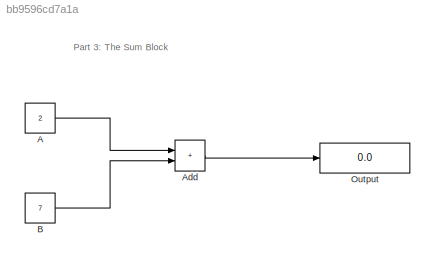
MODEL slx_bb9596cd7a1a
KIND model
CONFIG AbsTol = auto
CONFIG EnableMultiTasking = off
CONFIG FixedStep = auto
CONFIG MaxStep = auto
CONFIG MinStep = auto
CONFIG RelTol = 1e-3
CONFIG SampleTimeConstraint = Unconstrained
CONFIG SolverName = VariableStepAuto
CONFIG StartTime = 0.0
CONFIG StopTime = 10.0
BLOCK [Constant] A
  Value = 2
BLOCK [Sum] Add
  IconShape = rectangular
BLOCK [Constant] B
  Value = 7
BLOCK [Display] Output
  Decimation = 1
ANNOTATION (root): P art 3: The Sum Block
LINE A:1 -> Add:1
LINE Add:1 -> Output:1
LINE B:1 -> Add:2
